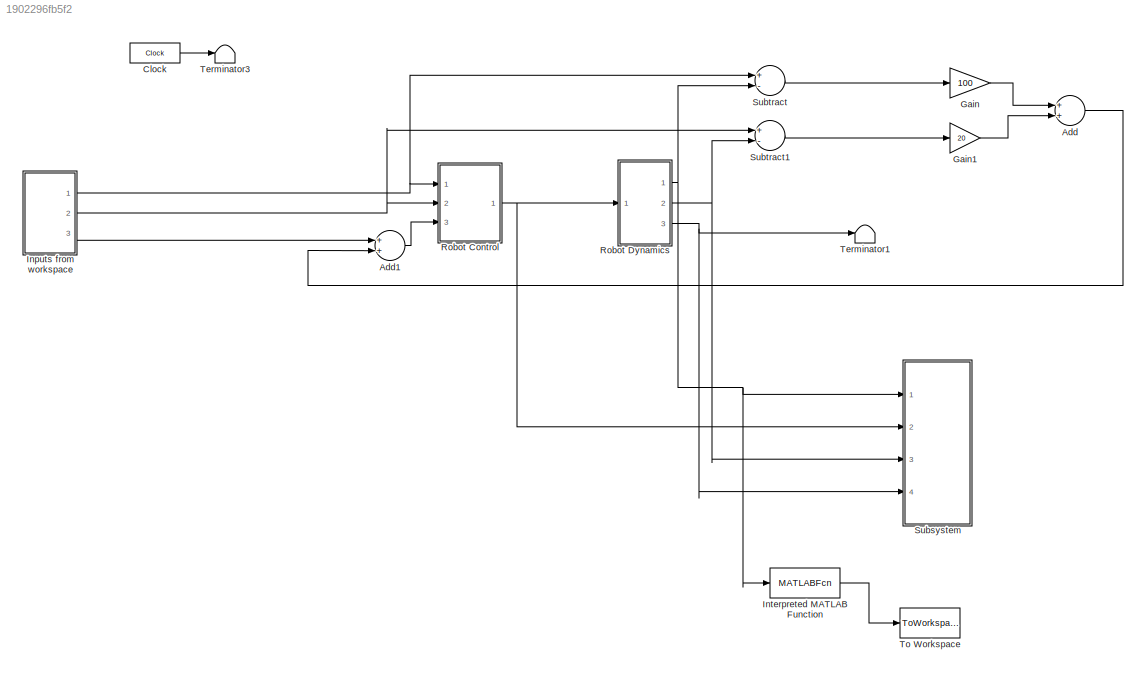
MODEL slx_1902296fb5f2
KIND model
CONFIG AbsTol = auto
CONFIG EnableMultiTasking = off
CONFIG FixedStep = auto
CONFIG MaxStep = auto
CONFIG MinStep = auto
CONFIG RelTol = 1e-3
CONFIG SampleTimeConstraint = Unconstrained
CONFIG Solver = VariableStepAuto
CONFIG SolverName = VariableStepAuto
CONFIG StartTime = 0.0
CONFIG StopTime = 10.0
BLOCK [Sum] Add
  InputSameDT = off
  OutDataTypeStr = Inherit: Inherit via internal rule
  Ports = [2, 1]
  SaturateOnIntegerOverflow = off
BLOCK [Sum] Add1
  InputSameDT = off
  OutDataTypeStr = Inherit: Inherit via internal rule
  Ports = [2, 1]
  SaturateOnIntegerOverflow = off
BLOCK [Clock] Clock
  DisplayTime = on
BLOCK [Gain] Gain
  Gain = 100
  OutDataTypeStr = Inherit: Inherit via internal rule
  ParamDataTypeStr = Inherit: Inherit via internal rule
  SaturateOnIntegerOverflow = off
BLOCK [Gain] Gain1
  Gain = 20
  OutDataTypeStr = Inherit: Inherit via internal rule
  ParamDataTypeStr = Inherit: Inherit via internal rule
  SaturateOnIntegerOverflow = off
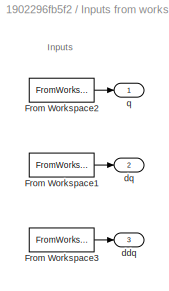
BLOCK [SubSystem] Inputs from workspace
  Ports = [0, 3]
  RequestExecContextInheritance = off
  Variant = off
BLOCK [FromWorkspace] Inputs from workspace/From Workspace1
  SampleTime = 0.1
  VariableName = H.dq
  ZeroCross = on
BLOCK [FromWorkspace] Inputs from workspace/From Workspace2
  SampleTime = 0.1
  VariableName = H.q
  ZeroCross = on
BLOCK [FromWorkspace] Inputs from workspace/From Workspace3
  SampleTime = 0.1
  VariableName = H.ddq
  ZeroCross = on
BLOCK [Outport] Inputs from workspace/ddq
  IconDisplay = Port number
  Port = 3
BLOCK [Outport] Inputs from workspace/dq
  IconDisplay = Port number
  Port = 2
BLOCK [Outport] Inputs from workspace/q
  IconDisplay = Port number
BLOCK [MATLABFcn] Interpreted MATLAB Function
  MATLABFcn = ForwardKinematics(u)
  OutputDimensions = 3
  Ports = [1, 1]
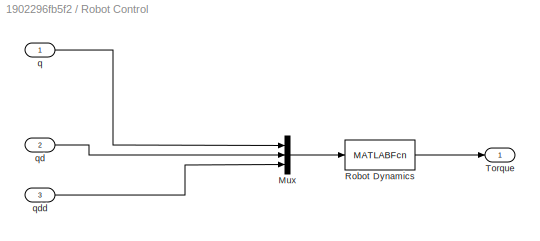
BLOCK [SubSystem] Robot Control
  Ports = [3, 1]
  RequestExecContextInheritance = off
  Variant = off
BLOCK [Mux] Robot Control/Mux
  DisplayOption = bar
  Inputs = 3
  Ports = [3, 1]
BLOCK [MATLABFcn] Robot Control/Robot Dynamics
  MATLABFcn = Robotdynamics(u)
  OutputDimensions = 6
  Ports = [1, 1]
BLOCK [Outport] Robot Control/Torque
  IconDisplay = Port number
BLOCK [Inport] Robot Control/q
  IconDisplay = Port number
BLOCK [Inport] Robot Control/qd
  IconDisplay = Port number
  Port = 2
BLOCK [Inport] Robot Control/qdd
  IconDisplay = Port number
  Port = 3
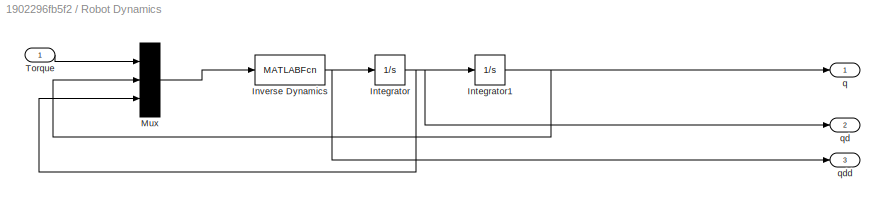
BLOCK [SubSystem] Robot Dynamics
  Ports = [1, 3]
  RequestExecContextInheritance = off
  Variant = off
BLOCK [Integrator] Robot Dynamics/Integrator
  InitialCondition = H.dq(1,2:7)
  Ports = [1, 1]
BLOCK [Integrator] Robot Dynamics/Integrator1
  InitialCondition = [1, 2, 3, 4, 5, 6]
  Ports = [1, 1]
BLOCK [MATLABFcn] Robot Dynamics/Inverse Dynamics
  MATLABFcn = InverseDynamics(u)
  OutputDimensions = 6
  Ports = [1, 1]
BLOCK [Mux] Robot Dynamics/Mux
  DisplayOption = bar
  Inputs = 3
  Ports = [3, 1]
BLOCK [Inport] Robot Dynamics/Torque
  IconDisplay = Port number
BLOCK [Outport] Robot Dynamics/q
  IconDisplay = Port number
BLOCK [Outport] Robot Dynamics/qd
  IconDisplay = Port number
  Port = 2
BLOCK [Outport] Robot Dynamics/qdd
  IconDisplay = Port number
  Port = 3
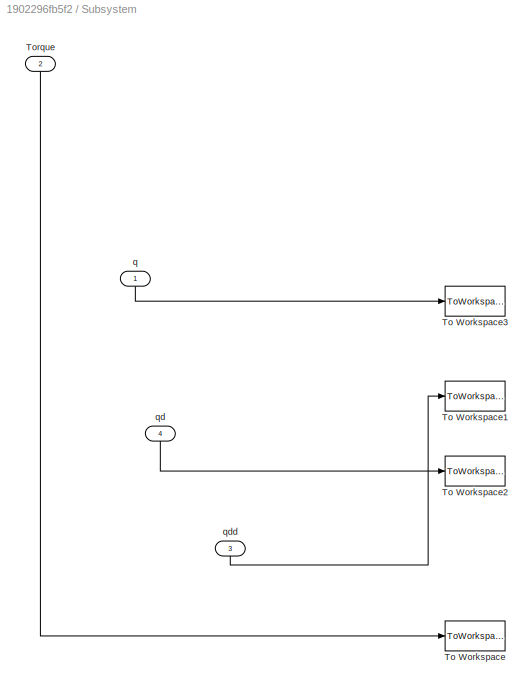
BLOCK [SubSystem] Subsystem
  Ports = [4]
  RequestExecContextInheritance = off
  Variant = off
BLOCK [ToWorkspace] Subsystem/To Workspace
  FixptAsFi = on
  MaxDataPoints = inf
  Ports = [1]
  SampleTime = -1
  Save2DSignal = 3-D array (concatenate along third dimension)
  SaveFormat = Timeseries
  VariableName = TorqueOutput
BLOCK [ToWorkspace] Subsystem/To Workspace1
  FixptAsFi = on
  MaxDataPoints = inf
  Ports = [1]
  SampleTime = -1
  Save2DSignal = 3-D array (concatenate along third dimension)
  SaveFormat = Timeseries
  VariableName = QdactOutput
BLOCK [ToWorkspace] Subsystem/To Workspace2
  FixptAsFi = on
  MaxDataPoints = inf
  Ports = [1]
  SampleTime = -1
  Save2DSignal = 3-D array (concatenate along third dimension)
  SaveFormat = Timeseries
  VariableName = QddactOutput
BLOCK [ToWorkspace] Subsystem/To Workspace3
  FixptAsFi = on
  MaxDataPoints = inf
  Ports = [1]
  SampleTime = 0.1
  SaveFormat = Timeseries
  VariableName = QactOutput
BLOCK [Inport] Subsystem/Torque
  IconDisplay = Port number
  Port = 2
BLOCK [Inport] Subsystem/q
  IconDisplay = Port number
BLOCK [Inport] Subsystem/qd
  IconDisplay = Port number
  Port = 4
BLOCK [Inport] Subsystem/qdd
  IconDisplay = Port number
  Port = 3
BLOCK [Sum] Subtract
  InputSameDT = off
  Inputs = +-
  OutDataTypeStr = Inherit: Inherit via internal rule
  Ports = [2, 1]
  SaturateOnIntegerOverflow = off
BLOCK [Sum] Subtract1
  InputSameDT = off
  Inputs = +-
  OutDataTypeStr = Inherit: Inherit via internal rule
  Ports = [2, 1]
  SaturateOnIntegerOverflow = off
BLOCK [Terminator] Terminator1
BLOCK [Terminator] Terminator3
BLOCK [ToWorkspace] To Workspace
  FixptAsFi = on
  MaxDataPoints = inf
  Ports = [1]
  SampleTime = -1
  Save2DSignal = 3-D array (concatenate along third dimension)
  SaveFormat = Timeseries
  VariableName = fkineout
ANNOTATION Inputs from workspace: Inputs
LINE Add1:1 -> Robot Control:3
LINE Add:1 -> Add1:2
LINE Clock:1 -> Terminator3:1
LINE Gain1:1 -> Add:2
LINE Gain:1 -> Add:1
LINE Inputs from workspace/From Workspace1:1 -> Inputs from workspace/dq:1
LINE Inputs from workspace/From Workspace2:1 -> Inputs from workspace/q:1
LINE Inputs from workspace/From Workspace3:1 -> Inputs from workspace/ddq:1
NET Inputs from workspace:1 -> Robot Control:1, Subtract:1
NET Inputs from workspace:2 -> Robot Control:2, Subtract1:1
LINE Inputs from workspace:3 -> Add1:1
LINE Interpreted MATLAB Function:1 -> To Workspace:1
LINE Robot Control/Mux:1 -> Robot Control/Robot Dynamics:1
LINE Robot Control/Robot Dynamics:1 -> Robot Control/Torque:1
LINE Robot Control/q:1 -> Robot Control/Mux:1
LINE Robot Control/qd:1 -> Robot Control/Mux:2
LINE Robot Control/qdd:1 -> Robot Control/Mux:3
NET Robot Control:1 -> Robot Dynamics:1, Subsystem:2
NET Robot Dynamics/Integrator1:1 -> Robot Dynamics/Mux:2, Robot Dynamics/q:1
NET Robot Dynamics/Integrator:1 -> Robot Dynamics/Integrator1:1, Robot Dynamics/Mux:3, Robot Dynamics/qd:1
NET Robot Dynamics/Inverse Dynamics:1 -> Robot Dynamics/Integrator:1, Robot Dynamics/qdd:1
LINE Robot Dynamics/Mux:1 -> Robot Dynamics/Inverse Dynamics:1
LINE Robot Dynamics/Torque:1 -> Robot Dynamics/Mux:1
NET Robot Dynamics:1 -> Interpreted MATLAB Function:1, Subsystem:1, Subtract:2
NET Robot Dynamics:2 -> Subsystem:3, Subtract1:2
NET Robot Dynamics:3 -> Subsystem:4, Terminator1:1
LINE Subsystem/Torque:1 -> Subsystem/To Workspace:1
LINE Subsystem/q:1 -> Subsystem/To Workspace3:1
LINE Subsystem/qd:1 -> Subsystem/To Workspace2:1
LINE Subsystem/qdd:1 -> Subsystem/To Workspace1:1
LINE Subtract1:1 -> Gain1:1
LINE Subtract:1 -> Gain:1
note: NET lines group one-source signal fan-out (src -> all destinations, sorted); 1:1 wires keep LINE
